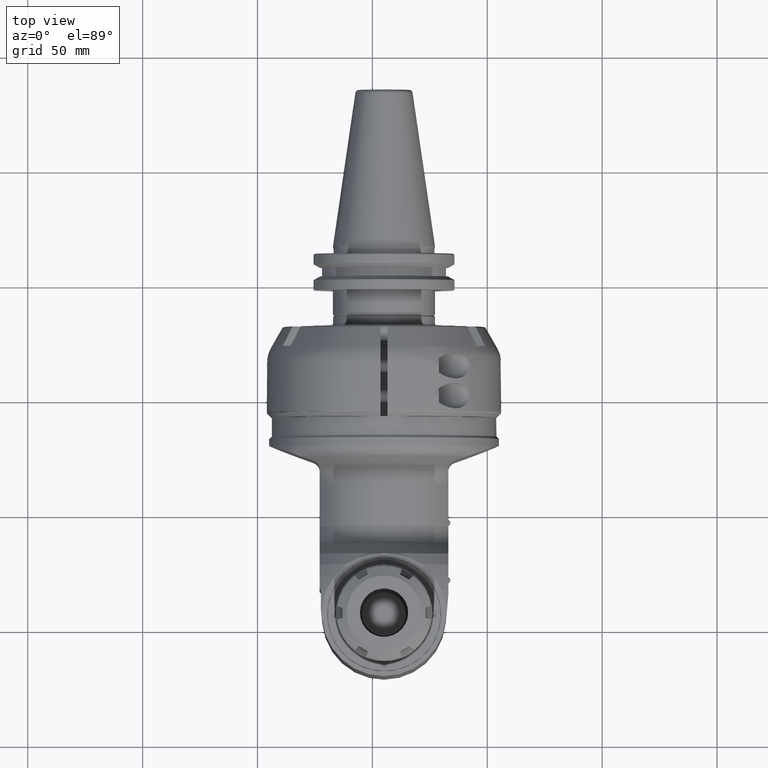
[diagram: clean part render]
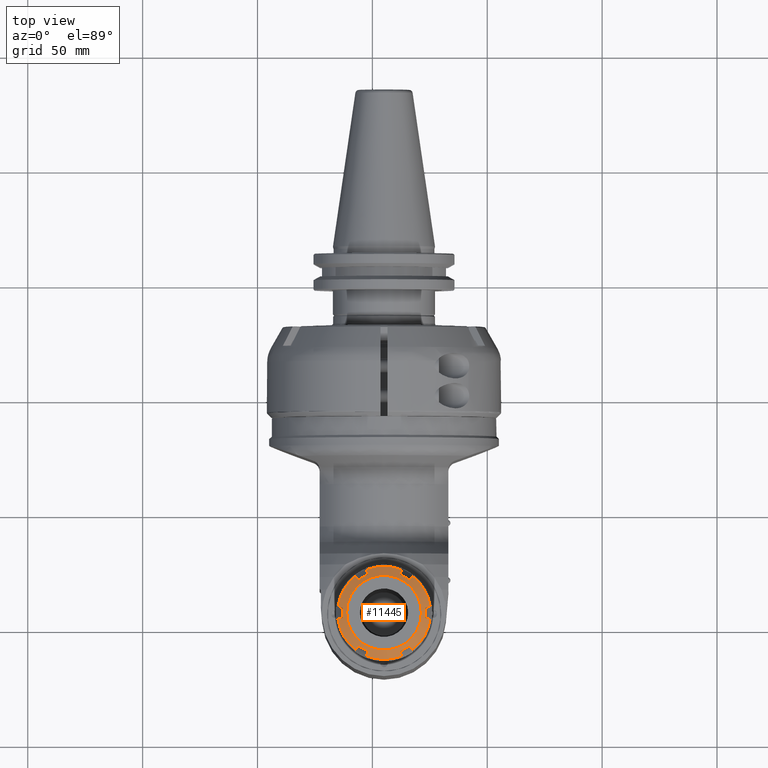
[diagram: same view with one face highlighted and labeled with its STEP entity id]
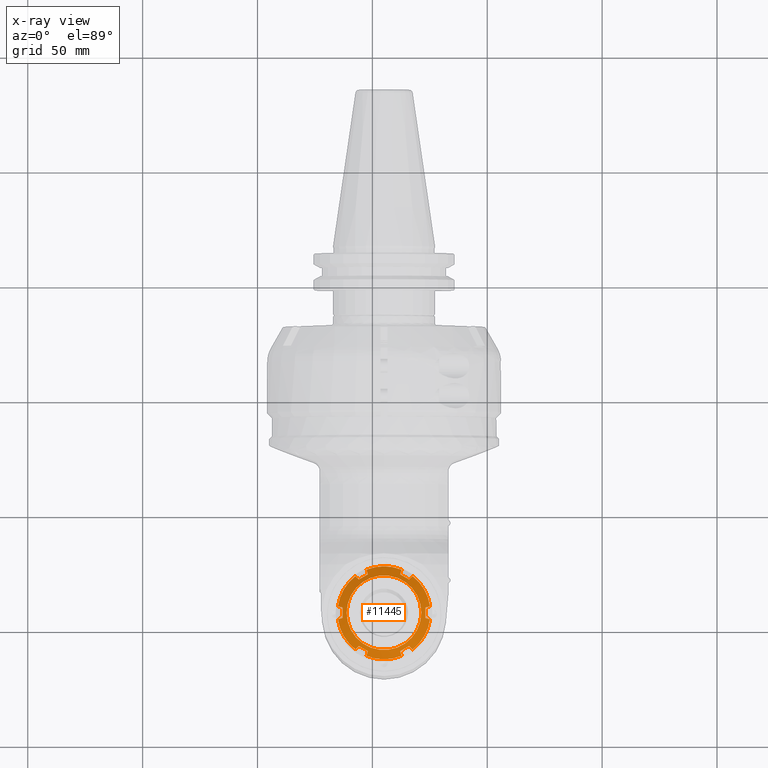
[diagram: x-ray of the same camera — body ghosted, the highlighted face saturated]
A machine part, top view. The second image highlights one B-rep face of the part: STEP entity #11445.
The next image is the same camera in x-ray: the body ghosted, the highlighted face saturated — about 0% of this face is hidden behind the body in this view.
In plain terms, the highlighted conical surface has half-angle 60 deg.
Its self-contained STEP definition (entity closure, byte-faithful):
#143=CONICAL_SURFACE('',#12442,18.25,1.0471975511966);
#464=(
BOUNDED_CURVE()
B_SPLINE_CURVE(2,(#18819,#18820,#18821),.UNSPECIFIED.,.F.,.F.)
B_SPLINE_CURVE_WITH_KNOTS((3,3),(-2.04181772173243,-1.49336521484267),
 .UNSPECIFIED.)
CURVE()
GEOMETRIC_REPRESENTATION_ITEM()
RATIONAL_B_SPLINE_CURVE((1.18733146057967,1.1965715415215,1.18733146058405))
REPRESENTATION_ITEM('')
);
#465=(
BOUNDED_CURVE()
B_SPLINE_CURVE(2,(#18824,#18825,#18826),.UNSPECIFIED.,.F.,.F.)
B_SPLINE_CURVE_WITH_KNOTS((3,3),(-1.02537702849321,-0.679972099673729),
 .UNSPECIFIED.)
CURVE()
GEOMETRIC_REPRESENTATION_ITEM()
RATIONAL_B_SPLINE_CURVE((1.06818275838806,1.06144565769073,1.05151057441807))
REPRESENTATION_ITEM('')
);
#466=(
BOUNDED_CURVE()
B_SPLINE_CURVE(2,(#18848,#18849,#18850),.UNSPECIFIED.,.F.,.F.)
B_SPLINE_CURVE_WITH_KNOTS((3,3),(0.680085396763447,1.02555299438987),
 .UNSPECIFIED.)
CURVE()
GEOMETRIC_REPRESENTATION_ITEM()
RATIONAL_B_SPLINE_CURVE((1.05152845436626,1.06146831490418,1.06821018833528))
REPRESENTATION_ITEM('')
);
#467=(
BOUNDED_CURVE()
B_SPLINE_CURVE(2,(#18861,#18862,#18863),.UNSPECIFIED.,.F.,.F.)
B_SPLINE_CURVE_WITH_KNOTS((3,3),(-2.0418176029359,-1.49336533351541),
 .UNSPECIFIED.)
CURVE()
GEOMETRIC_REPRESENTATION_ITEM()
RATIONAL_B_SPLINE_CURVE((1.18733146458315,1.19657153752129,1.18733146458325))
REPRESENTATION_ITEM('')
);
#468=(
BOUNDED_CURVE()
B_SPLINE_CURVE(2,(#18866,#18867,#18868),.UNSPECIFIED.,.F.,.F.)
B_SPLINE_CURVE_WITH_KNOTS((3,3),(2.48068688838155,2.82609226926002),
 .UNSPECIFIED.)
CURVE()
GEOMETRIC_REPRESENTATION_ITEM()
RATIONAL_B_SPLINE_CURVE((1.06818275838853,1.06144564887379,1.05151054841279))
REPRESENTATION_ITEM('')
);
#469=(
BOUNDED_CURVE()
B_SPLINE_CURVE(2,(#18892,#18893,#18894),.UNSPECIFIED.,.F.,.F.)
B_SPLINE_CURVE_WITH_KNOTS((3,3),(-2.82609226927512,-2.48068688839227),
 .UNSPECIFIED.)
CURVE()
GEOMETRIC_REPRESENTATION_ITEM()
RATIONAL_B_SPLINE_CURVE((1.05151054841933,1.06144564888165,1.06818275839726))
REPRESENTATION_ITEM('')
);
#470=(
BOUNDED_CURVE()
B_SPLINE_CURVE(2,(#18903,#18904,#18905),.UNSPECIFIED.,.F.,.F.)
B_SPLINE_CURVE_WITH_KNOTS((3,3),(-2.04181760293345,-1.49336533351308),
 .UNSPECIFIED.)
CURVE()
GEOMETRIC_REPRESENTATION_ITEM()
RATIONAL_B_SPLINE_CURVE((1.18733146458335,1.1965715375214,1.18733146458326))
REPRESENTATION_ITEM('')
);
#471=(
BOUNDED_CURVE()
B_SPLINE_CURVE(2,(#18908,#18909,#18910),.UNSPECIFIED.,.F.,.F.)
B_SPLINE_CURVE_WITH_KNOTS((3,3),(2.48068688838207,2.82609226926388),
 .UNSPECIFIED.)
CURVE()
GEOMETRIC_REPRESENTATION_ITEM()
RATIONAL_B_SPLINE_CURVE((1.06818275838791,1.0614456488732,1.0515105484122))
REPRESENTATION_ITEM('')
);
#472=(
BOUNDED_CURVE()
B_SPLINE_CURVE(2,(#18932,#18933,#18934),.UNSPECIFIED.,.F.,.F.)
B_SPLINE_CURVE_WITH_KNOTS((3,3),(0.68008584953921,1.02555299438677),
 .UNSPECIFIED.)
CURVE()
GEOMETRIC_REPRESENTATION_ITEM()
RATIONAL_B_SPLINE_CURVE((1.05152848042122,1.06146832374042,1.0682101883355))
REPRESENTATION_ITEM('')
);
#473=(
BOUNDED_CURVE()
B_SPLINE_CURVE(2,(#18946,#18947,#18948),.UNSPECIFIED.,.F.,.F.)
B_SPLINE_CURVE_WITH_KNOTS((3,3),(-2.04181772176978,-1.76759146822259),
 .UNSPECIFIED.)
CURVE()
GEOMETRIC_REPRESENTATION_ITEM()
RATIONAL_B_SPLINE_CURVE((1.18733146057841,1.19195150105168,1.19195150105168))
REPRESENTATION_ITEM('')
);
#474=(
BOUNDED_CURVE()
B_SPLINE_CURVE(2,(#18949,#18950,#18951),.UNSPECIFIED.,.F.,.F.)
B_SPLINE_CURVE_WITH_KNOTS((3,3),(-1.76759146822259,-1.49336521468313),
 .UNSPECIFIED.)
CURVE()
GEOMETRIC_REPRESENTATION_ITEM()
RATIONAL_B_SPLINE_CURVE((1.19195150105168,1.19195150105168,1.18733146057867))
REPRESENTATION_ITEM('')
);
#475=(
BOUNDED_CURVE()
B_SPLINE_CURVE(2,(#18954,#18955,#18956),.UNSPECIFIED.,.F.,.F.)
B_SPLINE_CURVE_WITH_KNOTS((3,3),(2.48068688838451,2.82609181659633),
 .UNSPECIFIED.)
CURVE()
GEOMETRIC_REPRESENTATION_ITEM()
RATIONAL_B_SPLINE_CURVE((1.06818275838684,1.06144565770146,1.05151057445206))
REPRESENTATION_ITEM('')
);
#476=(
BOUNDED_CURVE()
B_SPLINE_CURVE(2,(#18978,#18979,#18980),.UNSPECIFIED.,.F.,.F.)
B_SPLINE_CURVE_WITH_KNOTS((3,3),(-2.82761978858617,-2.48215234576131),
 .UNSPECIFIED.)
CURVE()
GEOMETRIC_REPRESENTATION_ITEM()
RATIONAL_B_SPLINE_CURVE((1.05152840981754,1.06146825851256,1.06821012009149))
REPRESENTATION_ITEM('')
);
#477=(
BOUNDED_CURVE()
B_SPLINE_CURVE(2,(#18991,#18992,#18993),.UNSPECIFIED.,.F.,.F.)
B_SPLINE_CURVE_WITH_KNOTS((3,3),(1.49336533351239,2.04181760293252),
 .UNSPECIFIED.)
CURVE()
GEOMETRIC_REPRESENTATION_ITEM()
RATIONAL_B_SPLINE_CURVE((1.18733146458255,1.19657153752061,1.18733146458254))
REPRESENTATION_ITEM('')
);
#478=(
BOUNDED_CURVE()
B_SPLINE_CURVE(2,(#18996,#18997,#18998),.UNSPECIFIED.,.F.,.F.)
B_SPLINE_CURVE_WITH_KNOTS((3,3),(2.48068688838304,2.82609226925931),
 .UNSPECIFIED.)
CURVE()
GEOMETRIC_REPRESENTATION_ITEM()
RATIONAL_B_SPLINE_CURVE((1.06818275838601,1.06144564887154,1.05151054841097))
REPRESENTATION_ITEM('')
);
#479=(
BOUNDED_CURVE()
B_SPLINE_CURVE(2,(#19020,#19021,#19022),.UNSPECIFIED.,.F.,.F.)
B_SPLINE_CURVE_WITH_KNOTS((3,3),(-2.82761978858458,-2.48215234575752),
 .UNSPECIFIED.)
CURVE()
GEOMETRIC_REPRESENTATION_ITEM()
RATIONAL_B_SPLINE_CURVE((1.05152840982058,1.06146825851621,1.06821012009552))
REPRESENTATION_ITEM('')
);
#480=(
BOUNDED_CURVE()
B_SPLINE_CURVE(2,(#19033,#19034,#19035),.UNSPECIFIED.,.F.,.F.)
B_SPLINE_CURVE_WITH_KNOTS((3,3),(-2.04181760293242,-1.4933653335124),
 .UNSPECIFIED.)
CURVE()
GEOMETRIC_REPRESENTATION_ITEM()
RATIONAL_B_SPLINE_CURVE((1.18733146458265,1.19657153752071,1.18733146458264))
REPRESENTATION_ITEM('')
);
#481=(
BOUNDED_CURVE()
B_SPLINE_CURVE(2,(#19038,#19039,#19040),.UNSPECIFIED.,.F.,.F.)
B_SPLINE_CURVE_WITH_KNOTS((3,3),(2.48068688837628,2.82609226925583),
 .UNSPECIFIED.)
CURVE()
GEOMETRIC_REPRESENTATION_ITEM()
RATIONAL_B_SPLINE_CURVE((1.06818275839356,1.06144564887836,1.05151054841667))
REPRESENTATION_ITEM('')
);
#482=(
BOUNDED_CURVE()
B_SPLINE_CURVE(2,(#19061,#19062,#19063),.UNSPECIFIED.,.F.,.F.)
B_SPLINE_CURVE_WITH_KNOTS((3,3),(0.679972100167337,1.02537702849176),
 .UNSPECIFIED.)
CURVE()
GEOMETRIC_REPRESENTATION_ITEM()
RATIONAL_B_SPLINE_CURVE((1.05151057444559,1.06144565769926,1.06818275838684))
REPRESENTATION_ITEM('')
);
#1079=CIRCLE('',#12400,20.25);
#1080=CIRCLE('',#12408,20.25);
#1081=CIRCLE('',#12416,20.25);
#1082=CIRCLE('',#12424,20.25);
#1083=CIRCLE('',#12432,20.25);
#1084=CIRCLE('',#12440,20.25);
#1085=CIRCLE('',#12443,16.25);
#1769=FACE_OUTER_BOUND('',#2505,.T.);
#2505=EDGE_LOOP('',(#8580,#8581,#8582,#8583,#8584,#8585,#8586,#8587,#8588,
#8589,#8590,#8591,#8592,#8593,#8594,#8595,#8596,#8597,#8598,#8599,#8600,
#8601,#8602,#8603,#8604,#8605,#8606,#8607));
#3270=LINE('',#19066,#4008);
#4008=VECTOR('',#14533,18.25);
#4900=VERTEX_POINT('',#18815);
#4901=VERTEX_POINT('',#18817);
#4902=VERTEX_POINT('',#18823);
#4903=VERTEX_POINT('',#18836);
#4904=VERTEX_POINT('',#18847);
#4907=VERTEX_POINT('',#18859);
#4908=VERTEX_POINT('',#18865);
#4909=VERTEX_POINT('',#18878);
#4911=VERTEX_POINT('',#18891);
#4913=VERTEX_POINT('',#18901);
#4914=VERTEX_POINT('',#18907);
#4915=VERTEX_POINT('',#18920);
#4916=VERTEX_POINT('',#18931);
#4919=VERTEX_POINT('',#18943);
#4920=VERTEX_POINT('',#18945);
#4921=VERTEX_POINT('',#18953);
#4922=VERTEX_POINT('',#18966);
#4923=VERTEX_POINT('',#18977);
#4926=VERTEX_POINT('',#18989);
#4927=VERTEX_POINT('',#18995);
#4928=VERTEX_POINT('',#19008);
#4929=VERTEX_POINT('',#19019);
#4932=VERTEX_POINT('',#19031);
#4933=VERTEX_POINT('',#19037);
#4934=VERTEX_POINT('',#19050);
#4935=VERTEX_POINT('',#19065);
#6215=EDGE_CURVE('',#4901,#4900,#464,.T.);
#6216=EDGE_CURVE('',#4902,#4900,#465,.T.);
#6219=EDGE_CURVE('',#4902,#4903,#1079,.T.);
#6220=EDGE_CURVE('',#4904,#4903,#466,.T.);
#6226=EDGE_CURVE('',#4904,#4907,#467,.T.);
#6227=EDGE_CURVE('',#4908,#4907,#468,.T.);
#6230=EDGE_CURVE('',#4908,#4909,#1080,.T.);
#6232=EDGE_CURVE('',#4911,#4909,#469,.T.);
#6237=EDGE_CURVE('',#4911,#4913,#470,.T.);
#6238=EDGE_CURVE('',#4914,#4913,#471,.T.);
#6241=EDGE_CURVE('',#4914,#4915,#1081,.T.);
#6242=EDGE_CURVE('',#4916,#4915,#472,.T.);
#6248=EDGE_CURVE('',#4916,#4920,#473,.T.);
#6249=EDGE_CURVE('',#4920,#4919,#474,.T.);
#6250=EDGE_CURVE('',#4921,#4919,#475,.T.);
#6253=EDGE_CURVE('',#4921,#4922,#1082,.T.);
#6254=EDGE_CURVE('',#4923,#4922,#476,.T.);
#6260=EDGE_CURVE('',#4926,#4923,#477,.T.);
#6261=EDGE_CURVE('',#4927,#4926,#478,.T.);
#6263=EDGE_CURVE('',#4927,#4928,#1083,.T.);
#6265=EDGE_CURVE('',#4929,#4928,#479,.T.);
#6271=EDGE_CURVE('',#4929,#4932,#480,.T.);
#6272=EDGE_CURVE('',#4933,#4932,#481,.T.);
#6275=EDGE_CURVE('',#4933,#4934,#1084,.T.);
#6276=EDGE_CURVE('',#4901,#4934,#482,.T.);
#6277=EDGE_CURVE('',#4920,#4935,#3270,.T.);
#6278=EDGE_CURVE('',#4935,#4935,#1085,.T.);
#8580=ORIENTED_EDGE('',*,*,#6215,.F.);
#8581=ORIENTED_EDGE('',*,*,#6276,.T.);
#8582=ORIENTED_EDGE('',*,*,#6275,.F.);
#8583=ORIENTED_EDGE('',*,*,#6272,.T.);
#8584=ORIENTED_EDGE('',*,*,#6271,.F.);
#8585=ORIENTED_EDGE('',*,*,#6265,.T.);
#8586=ORIENTED_EDGE('',*,*,#6263,.F.);
#8587=ORIENTED_EDGE('',*,*,#6261,.T.);
#8588=ORIENTED_EDGE('',*,*,#6260,.T.);
#8589=ORIENTED_EDGE('',*,*,#6254,.T.);
#8590=ORIENTED_EDGE('',*,*,#6253,.F.);
#8591=ORIENTED_EDGE('',*,*,#6250,.T.);
#8592=ORIENTED_EDGE('',*,*,#6249,.F.);
#8593=ORIENTED_EDGE('',*,*,#6277,.T.);
#8594=ORIENTED_EDGE('',*,*,#6278,.F.);
#8595=ORIENTED_EDGE('',*,*,#6277,.F.);
#8596=ORIENTED_EDGE('',*,*,#6248,.F.);
#8597=ORIENTED_EDGE('',*,*,#6242,.T.);
#8598=ORIENTED_EDGE('',*,*,#6241,.F.);
#8599=ORIENTED_EDGE('',*,*,#6238,.T.);
#8600=ORIENTED_EDGE('',*,*,#6237,.F.);
#8601=ORIENTED_EDGE('',*,*,#6232,.T.);
#8602=ORIENTED_EDGE('',*,*,#6230,.F.);
#8603=ORIENTED_EDGE('',*,*,#6227,.T.);
#8604=ORIENTED_EDGE('',*,*,#6226,.F.);
#8605=ORIENTED_EDGE('',*,*,#6220,.T.);
#8606=ORIENTED_EDGE('',*,*,#6219,.F.);
#8607=ORIENTED_EDGE('',*,*,#6216,.T.);
#11445=ADVANCED_FACE('',(#1769),#143,.T.);
#12400=AXIS2_PLACEMENT_3D('',#18845,#14432,#14433);
#12408=AXIS2_PLACEMENT_3D('',#18887,#14451,#14452);
#12416=AXIS2_PLACEMENT_3D('',#18929,#14470,#14471);
#12424=AXIS2_PLACEMENT_3D('',#18975,#14489,#14490);
#12432=AXIS2_PLACEMENT_3D('',#19009,#14508,#14509);
#12440=AXIS2_PLACEMENT_3D('',#19059,#14527,#14528);
#12442=AXIS2_PLACEMENT_3D('',#19064,#14531,#14532);
#12443=AXIS2_PLACEMENT_3D('',#19067,#14534,#14535);
#14432=DIRECTION('center_axis',(0.,0.,1.));
#14433=DIRECTION('ref_axis',(-0.990389258049091,-0.138308053058999,0.));
#14451=DIRECTION('center_axis',(0.,0.,1.));
#14452=DIRECTION('ref_axis',(-0.375416341527389,-0.926856283635274,0.));
#14470=DIRECTION('center_axis',(0.,0.,1.));
#14471=DIRECTION('ref_axis',(0.614972916521619,-0.788548230576224,0.));
#14489=DIRECTION('center_axis',(0.,0.,1.));
#14490=DIRECTION('ref_axis',(0.990389258049077,0.138308053059097,0.));
#14508=DIRECTION('center_axis',(0.,0.,1.));
#14509=DIRECTION('ref_axis',(0.375416341527389,0.926856283635274,0.));
#14527=DIRECTION('center_axis',(0.,0.,1.));
#14528=DIRECTION('ref_axis',(-0.614972916521792,0.788548230576089,0.));
#14531=DIRECTION('center_axis',(0.,0.,1.));
#14532=DIRECTION('ref_axis',(-1.,0.,0.));
#14533=DIRECTION('',(-0.866025403784439,-1.06057523872491E-16,-0.5));
#14534=DIRECTION('center_axis',(0.,0.,-1.));
#14535=DIRECTION('ref_axis',(-1.,0.,0.));
#18815=CARTESIAN_POINT('',(-18.0000000585216,-88.2500000380305,-77.4087621730876));
#18817=CARTESIAN_POINT('',(-18.0000000585856,-83.7499999619279,-77.4087621729825));
#18819=CARTESIAN_POINT('Ctrl Pts',(-18.,-83.7499990171284,-77.4087621986591));
#18820=CARTESIAN_POINT('Ctrl Pts',(-18.,-85.9999999994711,-77.569888184967));
#18821=CARTESIAN_POINT('Ctrl Pts',(-18.,-88.2500009817972,-77.408762198736));
#18823=CARTESIAN_POINT('',(-20.05538247549,-88.80073807444,-76.19059935078));
#18824=CARTESIAN_POINT('Ctrl Pts',(-20.0553824754904,-88.8007380744447,
-76.1905993507828));
#18825=CARTESIAN_POINT('Ctrl Pts',(-18.9712107216417,-88.5102351285443,
-76.8337276879422));
#18826=CARTESIAN_POINT('Ctrl Pts',(-18.0000025670345,-88.2500006878348,
-77.4087607491537));
#18836=CARTESIAN_POINT('',(-12.45320155957,-101.9681016692,-76.19059935078));
#18845=CARTESIAN_POINT('Origin',(0.,-86.,-76.19059935078));
#18847=CARTESIAN_POINT('',(-10.9485571591981,-100.463457268313,-77.4087622681517));
#18848=CARTESIAN_POINT('Ctrl Pts',(-10.9485571591298,-100.46345726871,-77.4087622685581));
#18849=CARTESIAN_POINT('Ctrl Pts',(-11.6595317063028,-101.174431815883,
-76.8337285349923));
#18850=CARTESIAN_POINT('Ctrl Pts',(-12.4532015595908,-101.968101669171,
-76.1905993507698));
#18859=CARTESIAN_POINT('',(-7.05144284133099,-102.713457268796,-77.4087622681535));
#18861=CARTESIAN_POINT('Ctrl Pts',(-10.9485571589898,-100.463457267829,
-77.4087622690125));
#18862=CARTESIAN_POINT('Ctrl Pts',(-9.00000000000272,-101.588457268101,
-77.5698881157498));
#18863=CARTESIAN_POINT('Ctrl Pts',(-7.05144284101593,-102.713457268374,
-77.4087622690142));
#18865=CARTESIAN_POINT('',(-7.602180915931,-104.7688397436,-76.19059935078));
#18866=CARTESIAN_POINT('Ctrl Pts',(-7.60218091593304,-104.768839743603,
-76.190599350786));
#18867=CARTESIAN_POINT('Ctrl Pts',(-7.31167758741545,-103.684666561807,
-76.8337285350004));
#18868=CARTESIAN_POINT('Ctrl Pts',(-7.05144284170888,-102.713457268936,
-77.4087622685598));
#18878=CARTESIAN_POINT('',(7.602180915931,-104.7688397436,-76.19059935078));
#18887=CARTESIAN_POINT('Origin',(0.,-86.,-76.19059935078));
#18891=CARTESIAN_POINT('',(7.0514428413303,-102.713457268794,-77.408762268155));
#18892=CARTESIAN_POINT('Ctrl Pts',(7.0514428417082,-102.713457268933,-77.4087622685614));
#18893=CARTESIAN_POINT('Ctrl Pts',(7.31167758741492,-103.684666561805,-76.8337285350017));
#18894=CARTESIAN_POINT('Ctrl Pts',(7.60218091593305,-104.768839743603,-76.1905993507861));
#18901=CARTESIAN_POINT('',(10.9485571591961,-100.463457268311,-77.4087622681534));
#18903=CARTESIAN_POINT('Ctrl Pts',(7.05144284101523,-102.713457268371,-77.4087622690157));
#18904=CARTESIAN_POINT('Ctrl Pts',(9.00000000000138,-101.588457268099,-77.5698881157513));
#18905=CARTESIAN_POINT('Ctrl Pts',(10.9485571589878,-100.463457267827,-77.4087622690141));
#18907=CARTESIAN_POINT('',(12.45320155956,-101.9681016692,-76.19059935078));
#18908=CARTESIAN_POINT('Ctrl Pts',(12.453201559587,-101.968101669167,-76.1905993507727));
#18909=CARTESIAN_POINT('Ctrl Pts',(11.6595317063002,-101.17443181588,-76.8337285349944));
#18910=CARTESIAN_POINT('Ctrl Pts',(10.9485571591278,-100.463457268708,-77.4087622685597));
#18920=CARTESIAN_POINT('',(20.05538247549,-88.80073807444,-76.19059935078));
#18929=CARTESIAN_POINT('Origin',(0.,-86.,-76.19059935078));
#18931=CARTESIAN_POINT('',(18.0000025706506,-88.2500006888038,-77.4087607470128));
#18932=CARTESIAN_POINT('Ctrl Pts',(18.0000025706506,-88.2500006888038,-77.4087607470128));
#18933=CARTESIAN_POINT('Ctrl Pts',(18.9712107236532,-88.5102351290833,-76.8337276867491));
#18934=CARTESIAN_POINT('Ctrl Pts',(20.0553824754904,-88.8007380744447,-76.1905993507829));
#18943=CARTESIAN_POINT('',(18.0000000586001,-83.7499999619184,-77.4087621729587));
#18945=CARTESIAN_POINT('',(18.,-86.,-77.4896374564574));
#18946=CARTESIAN_POINT('Ctrl Pts',(18.,-88.2500009831803,-77.4087621986369));
#18947=CARTESIAN_POINT('Ctrl Pts',(18.,-87.1206399552772,-77.4896374564574));
#18948=CARTESIAN_POINT('Ctrl Pts',(18.,-86.,-77.4896374564574));
#18949=CARTESIAN_POINT('Ctrl Pts',(18.,-86.,-77.4896374564574));
#18950=CARTESIAN_POINT('Ctrl Pts',(18.,-84.8793600447543,-77.4896374564574));
#18951=CARTESIAN_POINT('Ctrl Pts',(18.,-83.7499990168835,-77.4087621986415));
#18953=CARTESIAN_POINT('',(20.05538247549,-83.19926192555,-76.19059935078));
#18954=CARTESIAN_POINT('Ctrl Pts',(20.0553824754922,-83.1992619255548,-76.1905993507817));
#18955=CARTESIAN_POINT('Ctrl Pts',(18.9712107235614,-83.4897648709413,-76.8337276868034));
#18956=CARTESIAN_POINT('Ctrl Pts',(18.0000025704825,-83.7499993112413,-77.4087607471122));
#18966=CARTESIAN_POINT('',(12.45320155957,-70.03189833083,-76.19059935078));
#18975=CARTESIAN_POINT('Origin',(0.,-86.,-76.19059935078));
#18977=CARTESIAN_POINT('',(10.948557159198,-71.5365427316672,-77.4087622681426));
#18978=CARTESIAN_POINT('Ctrl Pts',(10.9485571591298,-71.5365427312703,-77.408762268549));
#18979=CARTESIAN_POINT('Ctrl Pts',(11.6595317062934,-70.8255681841066,-76.8337285349908));
#18980=CARTESIAN_POINT('Ctrl Pts',(12.4532015595692,-70.0318983308308,-76.1905993507781));
#18989=CARTESIAN_POINT('',(7.051442841331,-69.2865427311838,-77.4087622681428));
#18991=CARTESIAN_POINT('Ctrl Pts',(7.05144284101594,-69.2865427316062,-77.4087622690035));
#18992=CARTESIAN_POINT('Ctrl Pts',(9.00000000000282,-70.4115427318787,-77.5698881157397));
#18993=CARTESIAN_POINT('Ctrl Pts',(10.9485571589897,-71.5365427321512,-77.4087622690033));
#18995=CARTESIAN_POINT('',(7.602180915931,-67.23116025638,-76.19059935078));
#18996=CARTESIAN_POINT('Ctrl Pts',(7.60218091593186,-67.2311602563815,-76.1905993507779));
#18997=CARTESIAN_POINT('Ctrl Pts',(7.31167758741507,-68.3153334381741,-76.8337285349905));
#18998=CARTESIAN_POINT('Ctrl Pts',(7.05144284170888,-69.2865427310445,-77.4087622685491));
#19008=CARTESIAN_POINT('',(-7.602180915931,-67.23116025638,-76.19059935078));
#19009=CARTESIAN_POINT('Origin',(0.,-86.,-76.19059935078));
#19019=CARTESIAN_POINT('',(-7.0514428413303,-69.2865427311864,-77.4087622681444));
#19020=CARTESIAN_POINT('Ctrl Pts',(-7.0514428417082,-69.286542731047,-77.4087622685508));
#19021=CARTESIAN_POINT('Ctrl Pts',(-7.3116775874145,-68.3153334381762,-76.8337285349919));
#19022=CARTESIAN_POINT('Ctrl Pts',(-7.60218091593187,-67.2311602563814,
-76.190599350778));
#19031=CARTESIAN_POINT('',(-10.9485571591961,-71.5365427316691,-77.4087622681442));
#19033=CARTESIAN_POINT('Ctrl Pts',(-7.05144284101525,-69.2865427316088,
-77.4087622690051));
#19034=CARTESIAN_POINT('Ctrl Pts',(-9.00000000000153,-70.411542731881,-77.5698881157412));
#19035=CARTESIAN_POINT('Ctrl Pts',(-10.9485571589878,-71.5365427321531,
-77.4087622690049));
#19037=CARTESIAN_POINT('',(-12.45320155957,-70.03189833083,-76.19059935078));
#19038=CARTESIAN_POINT('Ctrl Pts',(-12.4532015595692,-70.0318983308308,
-76.1905993507781));
#19039=CARTESIAN_POINT('Ctrl Pts',(-11.6595317062922,-70.8255681841079,
-76.8337285349918));
#19040=CARTESIAN_POINT('Ctrl Pts',(-10.9485571591278,-71.5365427312722,
-77.4087622685505));
#19050=CARTESIAN_POINT('',(-20.05538247549,-83.19926192555,-76.19059935078));
#19059=CARTESIAN_POINT('Origin',(0.,-86.,-76.19059935078));
#19061=CARTESIAN_POINT('Ctrl Pts',(-18.0000025698433,-83.7499993114126,
-77.4087607474907));
#19062=CARTESIAN_POINT('Ctrl Pts',(-18.9712107232057,-83.4897648710366,
-76.8337276870144));
#19063=CARTESIAN_POINT('Ctrl Pts',(-20.0553824754923,-83.1992619255548,
-76.1905993507817));
#19064=CARTESIAN_POINT('Origin',(0.,-86.,-77.34529988916));
#19065=CARTESIAN_POINT('',(16.250000000004,-86.,-78.5000004275369));
#19066=CARTESIAN_POINT('',(18.25,-86.,-77.34529988916));
#19067=CARTESIAN_POINT('Origin',(0.,-86.,-78.50000042753));